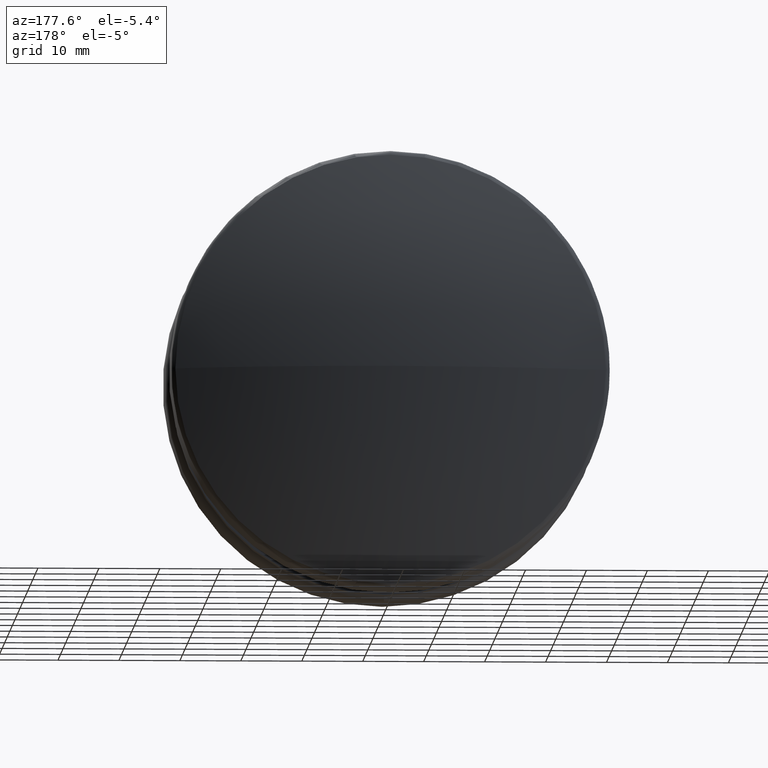
[diagram: clean part render]
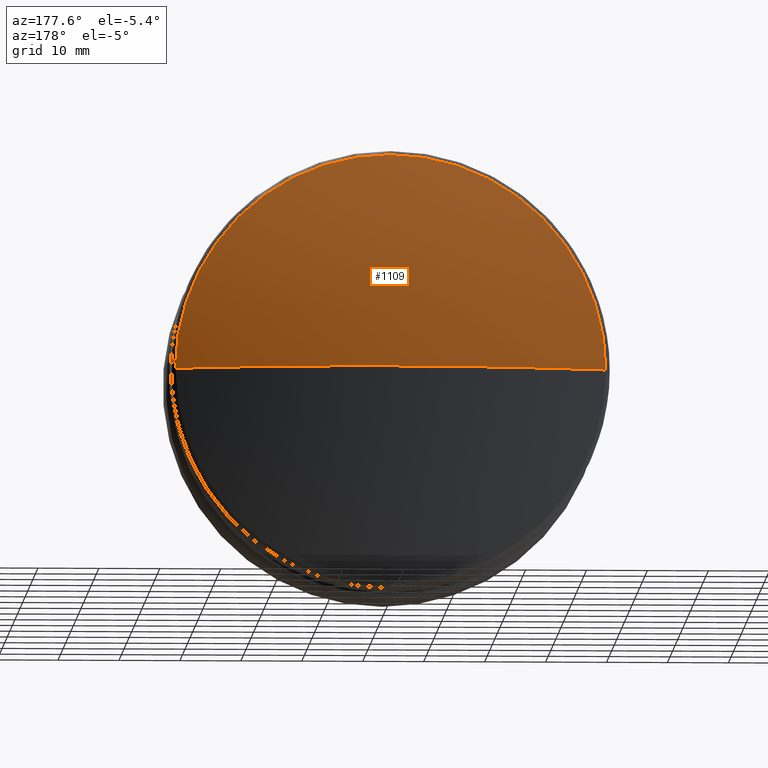
[diagram: same view with one face highlighted and labeled with its STEP entity id]
A machine part, auxiliary view. The second image highlights one B-rep face of the part: STEP entity #1109.
In plain terms, the highlighted spherical surface has radius 111 mm.
Its self-contained STEP definition (entity closure, byte-faithful):
#228 = AXIS2_PLACEMENT_3D ( 'NONE', #12048, #2127, #8796 ) ;
#341 = VERTEX_POINT ( 'NONE', #7639 ) ;
#362 = CIRCLE ( 'NONE', #5705, 110.9999999999999005 ) ;
#372 = DIRECTION ( 'NONE',  ( 0.000000000000000000, 0.000000000000000000, -1.000000000000000000 ) ) ;
#1109 = ADVANCED_FACE ( 'NONE', ( #11608 ), #5669, .T. ) ;
#1956 = CARTESIAN_POINT ( 'NONE',  ( 4.366979154232267126E-15, 9.231297782826233700, 35.31818181818182723 ) ) ;
#2127 = DIRECTION ( 'NONE',  ( 1.224646799147353207E-16, -0.000000000000000000, 1.000000000000000000 ) ) ;
#2191 = CARTESIAN_POINT ( 'NONE',  ( 6.796789735267804667E-15, 15.00000000000000000, 0.000000000000000000 ) ) ;
#2359 = DIRECTION ( 'NONE',  ( 1.000000000000000000, 0.000000000000000000, 0.000000000000000000 ) ) ;
#2451 = CARTESIAN_POINT ( 'NONE',  ( 0.000000000000000000, 9.231297782826233700, 0.000000000000000000 ) ) ;
#2711 = CARTESIAN_POINT ( 'NONE',  ( 0.000000000000000000, 9.231297782826233700, 0.000000000000000000 ) ) ;
#2919 = EDGE_CURVE ( 'NONE', #12507, #10661, #362, .T. ) ;
#3007 = CIRCLE ( 'NONE', #5987, 35.31818181818182723 ) ;
#3381 = DIRECTION ( 'NONE',  ( 0.000000000000000000, 0.000000000000000000, -1.000000000000000000 ) ) ;
#4576 = DIRECTION ( 'NONE',  ( 0.000000000000000000, 0.000000000000000000, 1.000000000000000000 ) ) ;
#4663 = AXIS2_PLACEMENT_3D ( 'NONE', #2451, #4759, #372 ) ;
#4718 = EDGE_LOOP ( 'NONE', ( #11079, #12584, #10967, #7483 ) ) ;
#4759 = DIRECTION ( 'NONE',  ( -0.000000000000000000, -1.000000000000000000, -0.000000000000000000 ) ) ;
#5050 = AXIS2_PLACEMENT_3D ( 'NONE', #9017, #4576, #2359 ) ;
#5669 = SPHERICAL_SURFACE ( 'NONE', #5050, 110.9999999999999005 ) ;
#5705 = AXIS2_PLACEMENT_3D ( 'NONE', #10048, #3381, #9018 ) ;
#5952 = DIRECTION ( 'NONE',  ( -0.000000000000000000, -1.000000000000000000, -0.000000000000000000 ) ) ;
#5987 = AXIS2_PLACEMENT_3D ( 'NONE', #2711, #5952, #8267 ) ;
#7483 = ORIENTED_EDGE ( 'NONE', *, *, #10528, .F. ) ;
#7639 = CARTESIAN_POINT ( 'NONE',  ( -35.31818181818183433, 9.231297782826226594, 4.325229831534063396E-15 ) ) ;
#7997 = VERTEX_POINT ( 'NONE', #1956 ) ;
#8267 = DIRECTION ( 'NONE',  ( 0.000000000000000000, 0.000000000000000000, -1.000000000000000000 ) ) ;
#8397 = CIRCLE ( 'NONE', #228, 110.9999999999999005 ) ;
#8796 = DIRECTION ( 'NONE',  ( 1.000000000000000000, 0.000000000000000000, -1.224646799147353207E-16 ) ) ;
#9017 = CARTESIAN_POINT ( 'NONE',  ( 0.000000000000000000, -95.99999999999990052, 0.000000000000000000 ) ) ;
#9018 = DIRECTION ( 'NONE',  ( -1.000000000000000000, 0.000000000000000000, 0.000000000000000000 ) ) ;
#10048 = CARTESIAN_POINT ( 'NONE',  ( 0.000000000000000000, -95.99999999999990052, 0.000000000000000000 ) ) ;
#10176 = EDGE_CURVE ( 'NONE', #12507, #341, #8397, .T. ) ;
#10528 = EDGE_CURVE ( 'NONE', #10661, #7997, #13566, .T. ) ;
#10661 = VERTEX_POINT ( 'NONE', #12365 ) ;
#10967 = ORIENTED_EDGE ( 'NONE', *, *, #13914, .F. ) ;
#11079 = ORIENTED_EDGE ( 'NONE', *, *, #2919, .F. ) ;
#11608 = FACE_OUTER_BOUND ( 'NONE', #4718, .T. ) ;
#12048 = CARTESIAN_POINT ( 'NONE',  ( 0.000000000000000000, -95.99999999999990052, 0.000000000000000000 ) ) ;
#12365 = CARTESIAN_POINT ( 'NONE',  ( 35.31818181818183433, 9.231297782826226594, 0.000000000000000000 ) ) ;
#12507 = VERTEX_POINT ( 'NONE', #2191 ) ;
#12584 = ORIENTED_EDGE ( 'NONE', *, *, #10176, .T. ) ;
#13566 = CIRCLE ( 'NONE', #4663, 35.31818181818182723 ) ;
#13914 = EDGE_CURVE ( 'NONE', #7997, #341, #3007, .T. ) ;